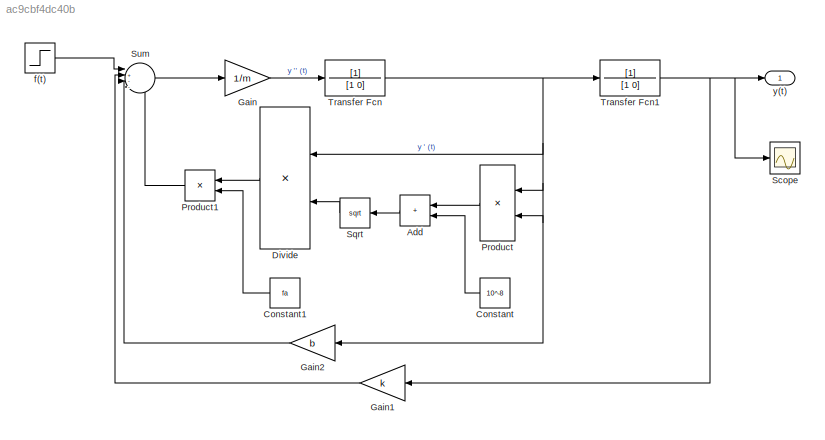
MODEL slx_ac9cbf4dc40b
KIND model
CONFIG AbsTol = auto
CONFIG EnableMultiTasking = off
CONFIG FixedStep = auto
CONFIG MaxStep = auto
CONFIG MinStep = auto
CONFIG RelTol = 1e-3
CONFIG SampleTimeConstraint = Unconstrained
CONFIG SolverName = VariableStepAuto
CONFIG StartTime = 0.0
CONFIG StopTime = 0.2
BLOCK [Sum] Add
  IconShape = rectangular
BLOCK [Constant] Constant
  Value = 10^-8
BLOCK [Constant] Constant1
  Value = fa
BLOCK [Product] Divide
  Inputs = */
BLOCK [Gain] Gain
  Gain = 1/m
BLOCK [Gain] Gain1
  Gain = k
BLOCK [Gain] Gain2
  Gain = b
BLOCK [Product] Product
BLOCK [Product] Product1
BLOCK [Scope] Scope
  Floating = off
  NumInputPorts = 1
  ScopeSpecificationString = Simulink.scopes.TimeScopeBlockCfg('CurrentConfiguration', extmgr.ConfigurationSet(extmgr.Configuration('Core','General UI',true),extmgr.Configuration('Core','Source UI',true),extmgr.Configuration('Sources','WiredSimulink',true),extmgr.Configuration('Visuals','Time Domain',true,'SerializedDisplays',{struct('MinYLimReal','-0.00029','MaxYLimReal','0.00262','YLabelReal','','MinYLimMag','0.00000','MaxY...<+1370ch>
BLOCK [Sqrt] Sqrt
BLOCK [Sum] Sum
  Inputs = |+---
BLOCK [TransferFcn] Transfer Fcn
  Denominator = [1 0]
BLOCK [TransferFcn] Transfer Fcn1
  Denominator = [1 0]
BLOCK [Step] f(t)
  After = f_final
  Before = f_inicial
  SampleTime = 0
  Time = t_inicial
BLOCK [Outport] y(t)
LINE Add:1 -> Sqrt:1
LINE Constant1:1 -> Product1:2
LINE Constant:1 -> Add:2
LINE Divide:1 -> Product1:1
LINE Gain1:1 -> Sum:2
LINE Gain2:1 -> Sum:3
LINE Gain:1 -> Transfer Fcn:1
LINE Product1:1 -> Sum:4
LINE Product:1 -> Add:1
LINE Sqrt:1 -> Divide:2
LINE Sum:1 -> Gain:1
NET Transfer Fcn1:1 -> Gain1:1, Scope:1, y(t):1
NET Transfer Fcn:1 -> Divide:1, Gain2:1, Product:1, Product:2, Transfer Fcn1:1
LINE f(t):1 -> Sum:1
note: NET lines group one-source signal fan-out (src -> all destinations, sorted); 1:1 wires keep LINE
